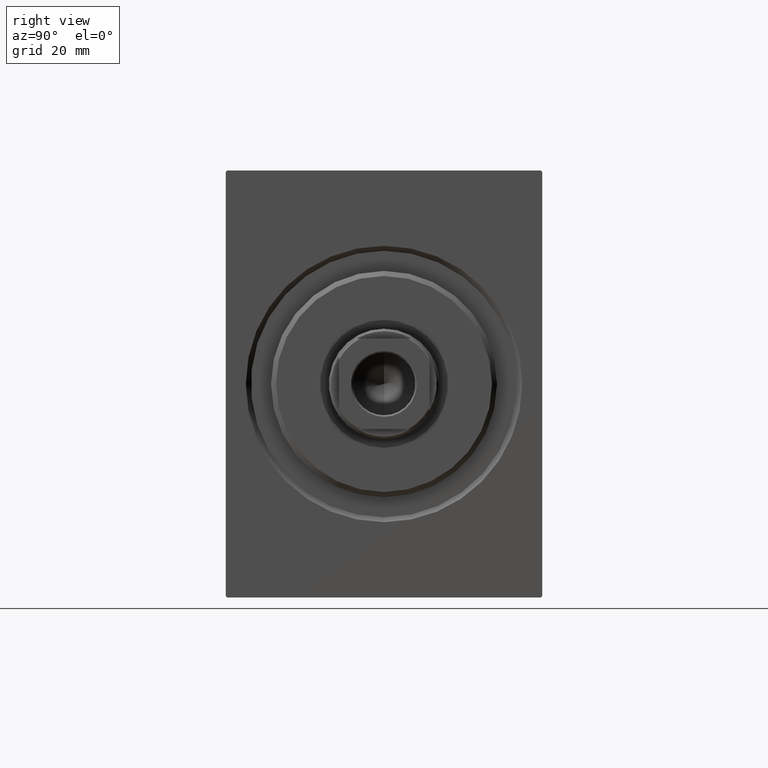
[diagram: clean part render]
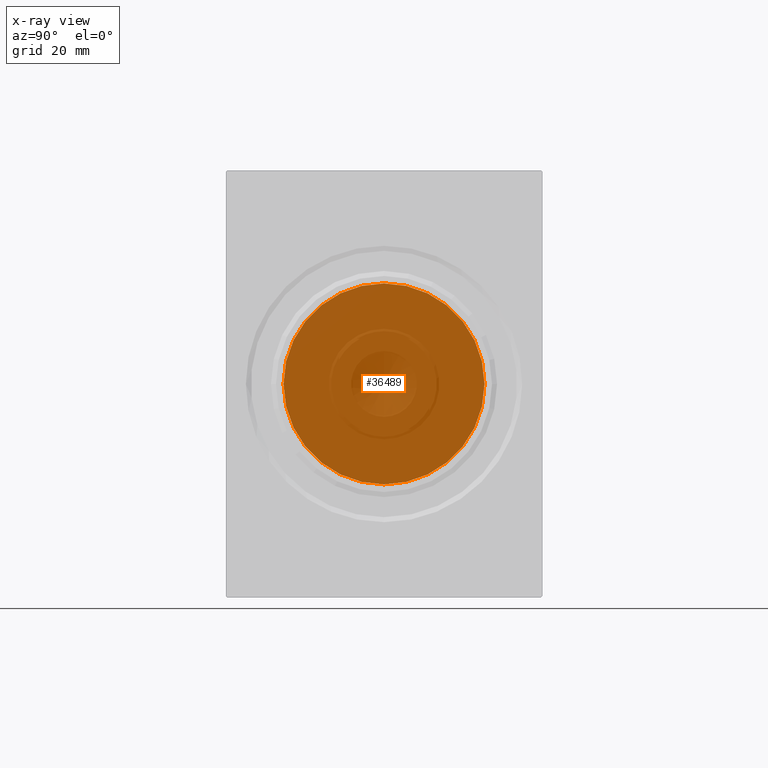
[diagram: x-ray — body ghosted, one internal face saturated and labeled with its STEP entity id]
A machine part, right view, then the same camera in x-ray: the body is ghosted and one INTERNAL B-rep face — a face not visible from any outside direction — is saturated and labeled: STEP entity #36489.
In plain terms, the highlighted planar face has unit normal (1, 0, -0).
Its self-contained STEP definition (entity closure, byte-faithful):
#899 = CIRCLE ( 'NONE', #41796, 20.00000000000000000 ) ;
#2879 = DIRECTION ( 'NONE',  ( -1.000000000000000000, 0.000000000000000000, 0.000000000000000000 ) ) ;
#3499 = CIRCLE ( 'NONE', #21527, 20.00000000000000000 ) ;
#4363 = PLANE ( 'NONE',  #7963 ) ;
#6344 = DIRECTION ( 'NONE',  ( 0.000000000000000000, 0.000000000000000000, 1.000000000000000000 ) ) ;
#6542 = EDGE_CURVE ( 'NONE', #40266, #26894, #899, .T. ) ;
#7963 = AXIS2_PLACEMENT_3D ( 'NONE', #14761, #30839, #17367 ) ;
#8684 = DIRECTION ( 'NONE',  ( -1.000000000000000000, 0.000000000000000000, 0.000000000000000000 ) ) ;
#8772 = ORIENTED_EDGE ( 'NONE', *, *, #12568, .T. ) ;
#9590 = CARTESIAN_POINT ( 'NONE',  ( 76.00000000000000000, 0.000000000000000000, 0.000000000000000000 ) ) ;
#12568 = EDGE_CURVE ( 'NONE', #26894, #40266, #3499, .T. ) ;
#14761 = CARTESIAN_POINT ( 'NONE',  ( 76.00000000000000000, 0.000000000000000000, 0.000000000000000000 ) ) ;
#15132 = ORIENTED_EDGE ( 'NONE', *, *, #6542, .T. ) ;
#17367 = DIRECTION ( 'NONE',  ( 0.000000000000000000, 0.000000000000000000, 1.000000000000000000 ) ) ;
#18160 = CARTESIAN_POINT ( 'NONE',  ( 76.00000000000000000, 0.000000000000000000, 20.00000000000000000 ) ) ;
#21527 = AXIS2_PLACEMENT_3D ( 'NONE', #27794, #8684, #34960 ) ;
#26894 = VERTEX_POINT ( 'NONE', #33983 ) ;
#27791 = FACE_OUTER_BOUND ( 'NONE', #41031, .T. ) ;
#27794 = CARTESIAN_POINT ( 'NONE',  ( 76.00000000000000000, 0.000000000000000000, 0.000000000000000000 ) ) ;
#30839 = DIRECTION ( 'NONE',  ( -1.000000000000000000, 0.000000000000000000, 0.000000000000000000 ) ) ;
#33983 = CARTESIAN_POINT ( 'NONE',  ( 76.00000000000000000, 2.449293598294706513E-15, -20.00000000000000000 ) ) ;
#34960 = DIRECTION ( 'NONE',  ( 0.000000000000000000, 0.000000000000000000, 1.000000000000000000 ) ) ;
#36489 = ADVANCED_FACE ( 'NONE', ( #27791 ), #4363, .T. ) ;
#40266 = VERTEX_POINT ( 'NONE', #18160 ) ;
#41031 = EDGE_LOOP ( 'NONE', ( #15132, #8772 ) ) ;
#41796 = AXIS2_PLACEMENT_3D ( 'NONE', #9590, #2879, #6344 ) ;